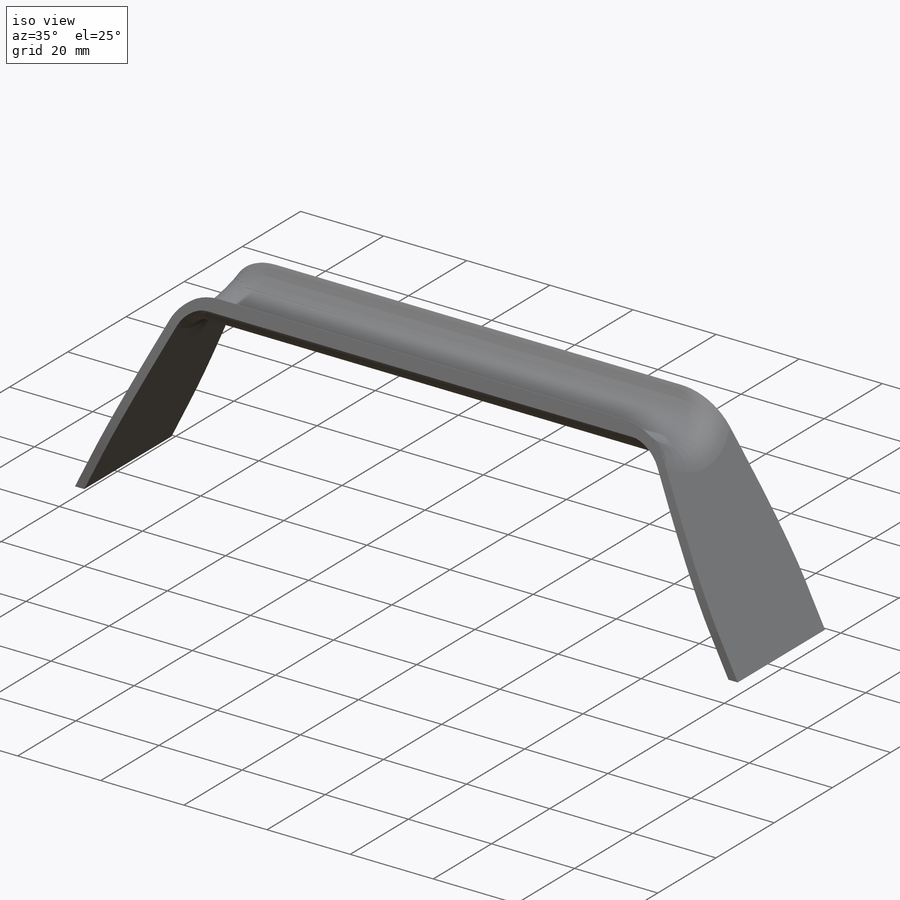
[diagram: iso view]
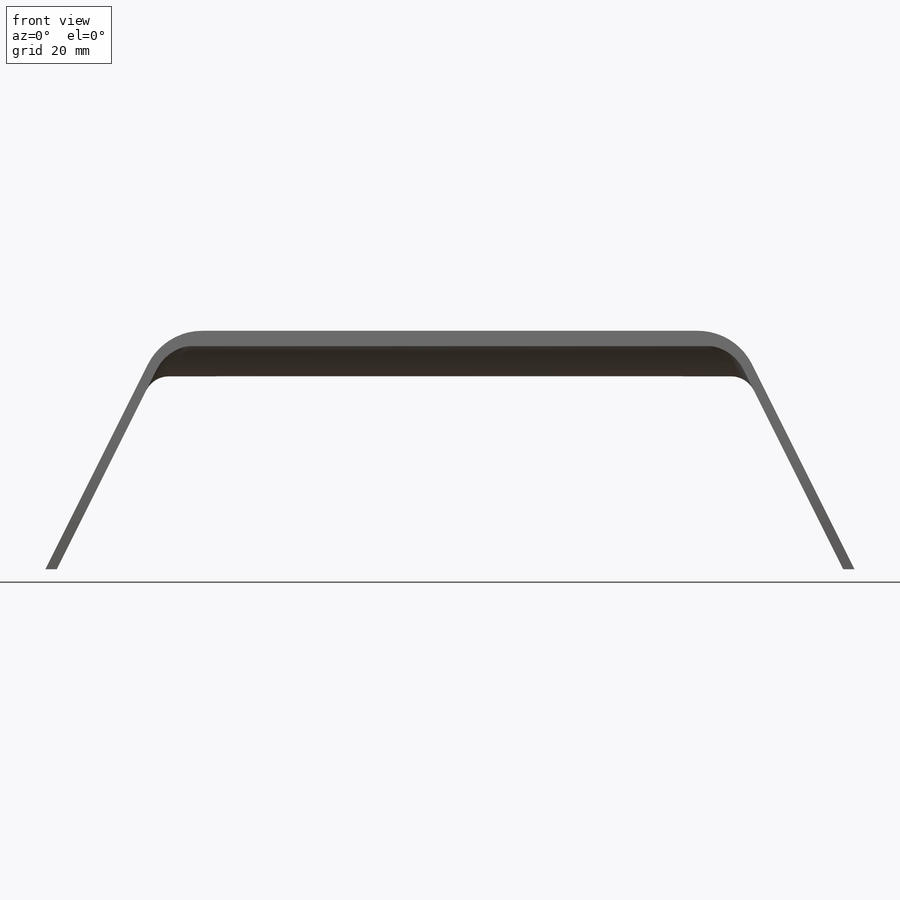
[diagram: front view]
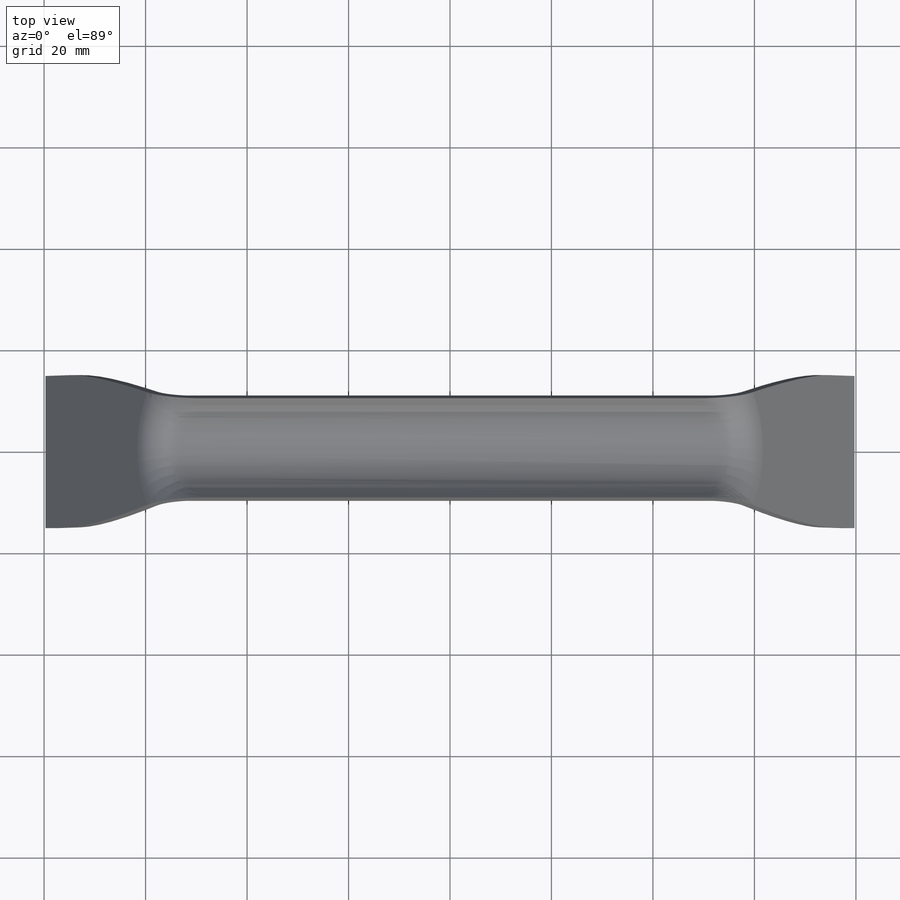
[diagram: top view]
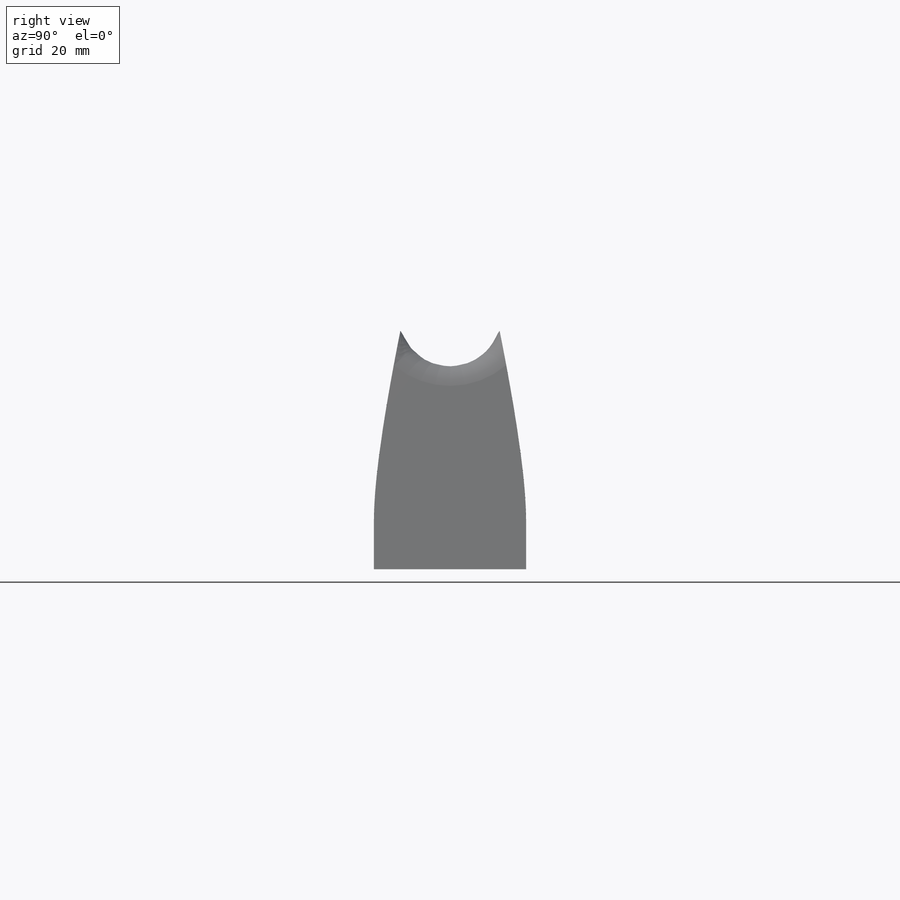
[diagram: right view]
SOLIDWORKS PART (.sldprt)
format: sldprt  version: not decoded by parser v0  size: 328,192 bytes
history: native  units: mm
features: sketch x5, plane x3, cut_extrude x3, extrude x2, fillet x2, material x1 (+9 scaffold rows collapsed)
feature tree (25):
  scaffold x9  (default folders/planes/origin — collapsed)
  material  "Material <nicht festgelegt>"
  plane  "Ebene vorne"
  plane  "Ebene oben"
  plane  "Ebene rechts"
  sketch  "Skizze1"  dims[D4=10.0mm D1=45.0mm D2=110.0mm D3=155.0mm D5=2.0mm]
  sketch  "Skizze2"  dims[D1=24.0mm D3=38.0mm D2=2.0mm]
  extrude  "Aufsatz-Linear austragen3"  Depth=30mm
  extrude  "Aufsatz-Linear austragen4"  Depth=130mm
  sketch  "Skizze3"
  cut_extrude  "Schnitt-Linear austragen1"  [1 undecoded]
  sketch  "Skizze4"
  cut_extrude  "Schnitt-Linear austragen2"  [1 undecoded]
  sketch  "Skizze5"
  cut_extrude  "Schnitt-Linear austragen3"  [1 undecoded]
  fillet  "Verrundung1"  Radius=5mm
  fillet  "Verrundung2"  Radius=7mm
decode coverage: 6 of 12 modeling features carry decoded parameters
note: 3 parameter values undecoded
summary: no parameter record found for 3 features
note: suppression state not decoded; provenance and decode notes live in map.json
